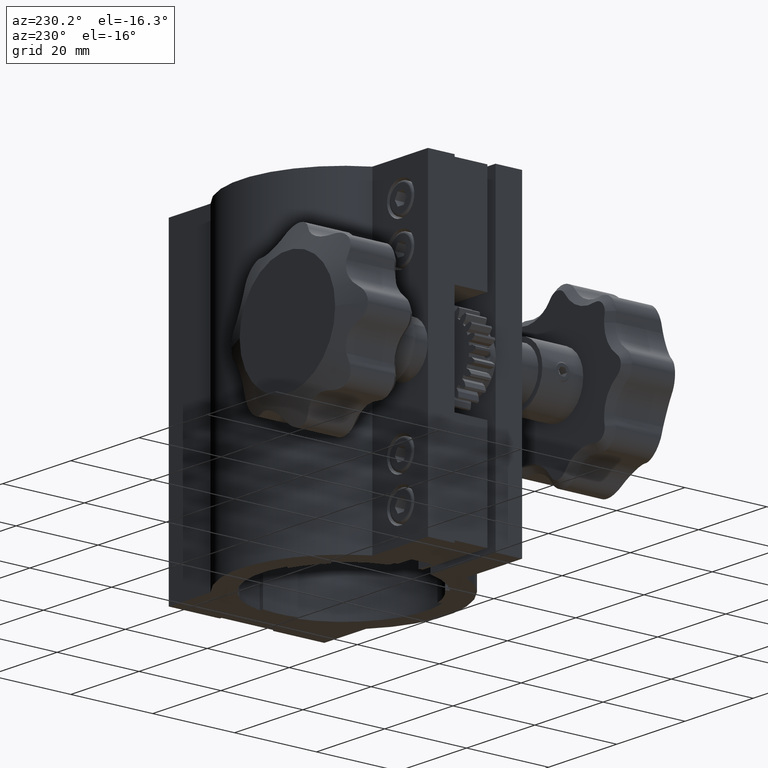
[diagram: clean part render]
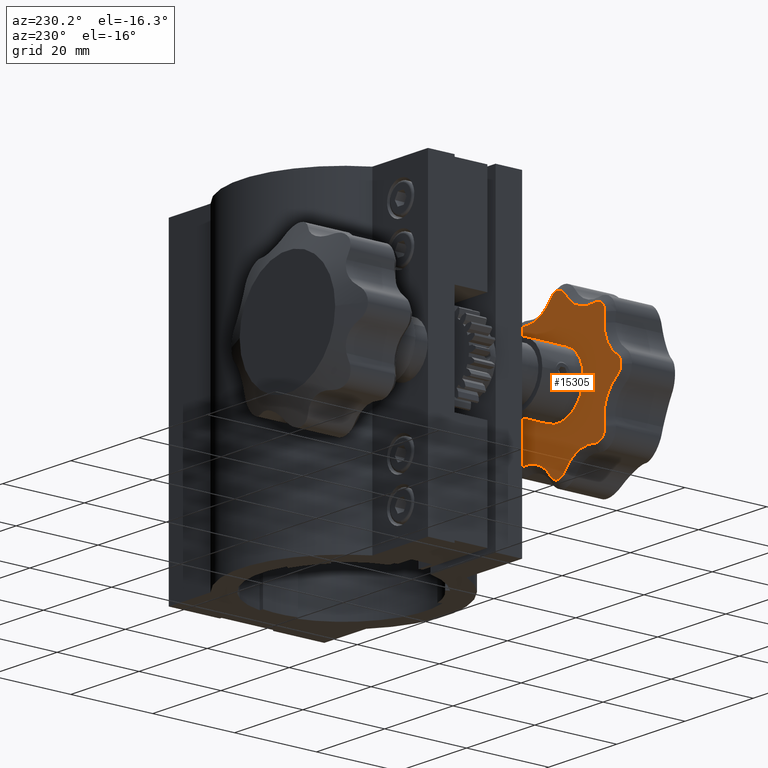
[diagram: same view with one face highlighted and labeled with its STEP entity id]
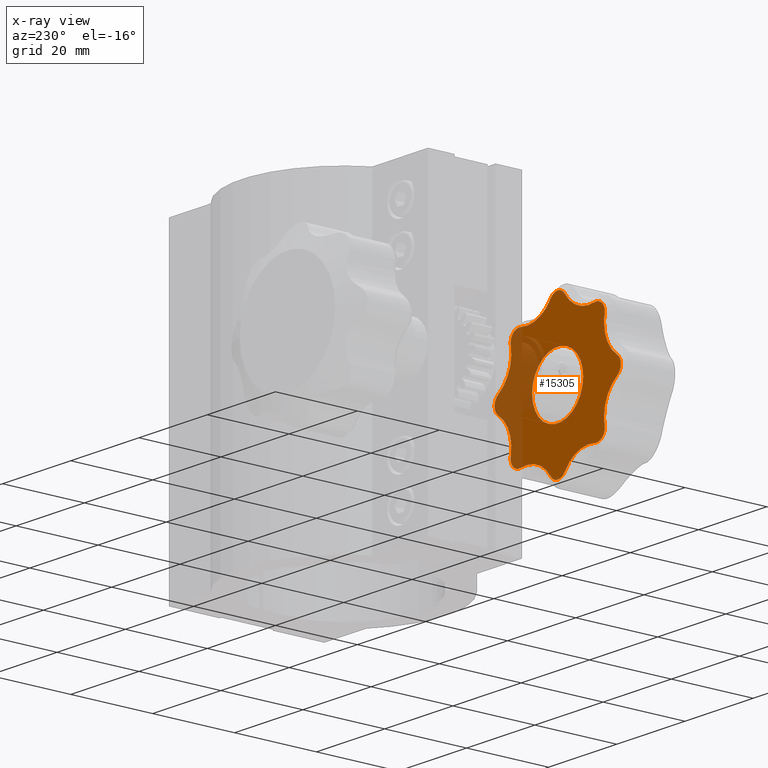
[diagram: x-ray of the same camera — body ghosted, the highlighted face saturated]
A machine part, auxiliary view. The second image highlights one B-rep face of the part: STEP entity #15305.
The next image is the same camera in x-ray: the body ghosted, the highlighted face saturated — about 26% of this face is hidden behind the body in this view.
In plain terms, the highlighted planar face has unit normal (0, -1, 0).
Its self-contained STEP definition (entity closure, byte-faithful):
#159 = CARTESIAN_POINT ( 'NONE',  ( -45.86468242595219600, -25.49999999999996800, 48.82287223682027400 ) ) ;
#227 = CIRCLE ( 'NONE', #6479, 8.500000000000021300 ) ;
#240 = CARTESIAN_POINT ( 'NONE',  ( -34.15952458363115300, -25.49999999999996100, 55.41716565348559000 ) ) ;
#241 = EDGE_CURVE ( 'NONE', #765, #13369, #7696, .T. ) ;
#399 = DIRECTION ( 'NONE',  ( 7.511012776517795100E-017, -1.000000000000000000, 5.679044632606782400E-017 ) ) ;
#533 = DIRECTION ( 'NONE',  ( -1.000000000000000000, 0.0000000000000000000, 0.0000000000000000000 ) ) ;
#659 = VERTEX_POINT ( 'NONE', #7663 ) ;
#723 = DIRECTION ( 'NONE',  ( -1.000000000000000000, 0.0000000000000000000, 0.0000000000000000000 ) ) ;
#765 = VERTEX_POINT ( 'NONE', #159 ) ;
#782 = DIRECTION ( 'NONE',  ( 7.511012776517795100E-017, -1.000000000000000000, 5.679044632606782400E-017 ) ) ;
#880 = ORIENTED_EDGE ( 'NONE', *, *, #15361, .T. ) ;
#1049 = VERTEX_POINT ( 'NONE', #12254 ) ;
#1062 = DIRECTION ( 'NONE',  ( -7.511012776517795100E-017, 1.000000000000000000, -5.679044632606782400E-017 ) ) ;
#1169 = VERTEX_POINT ( 'NONE', #11413 ) ;
#1269 = AXIS2_PLACEMENT_3D ( 'NONE', #6917, #15689, #8145 ) ;
#1455 = CARTESIAN_POINT ( 'NONE',  ( -22.94621229782707800, -25.49999999999985100, 60.09919841766998900 ) ) ;
#1561 = VERTEX_POINT ( 'NONE', #13044 ) ;
#1709 = EDGE_CURVE ( 'NONE', #14657, #6850, #11917, .T. ) ;
#1766 = CARTESIAN_POINT ( 'NONE',  ( -43.41370849898479600, -25.49999999999996400, 26.68629150101525800 ) ) ;
#1801 = CARTESIAN_POINT ( 'NONE',  ( -20.78629150101518500, -25.49999999999985400, 49.31370849898469500 ) ) ;
#1853 = AXIS2_PLACEMENT_3D ( 'NONE', #8570, #1062, #9861 ) ;
#1999 = EDGE_CURVE ( 'NONE', #10003, #1169, #2911, .T. ) ;
#2134 = VERTEX_POINT ( 'NONE', #5831 ) ;
#2528 = VERTEX_POINT ( 'NONE', #4639 ) ;
#2855 = CARTESIAN_POINT ( 'NONE',  ( -41.25378770217300000, -25.49999999999996100, 60.09919841767001700 ) ) ;
#2870 = CIRCLE ( 'NONE', #6866, 2.499638659272398900 ) ;
#2911 = CIRCLE ( 'NONE', #8185, 8.500000000000021300 ) ;
#2937 = VERTEX_POINT ( 'NONE', #12324 ) ;
#2989 = AXIS2_PLACEMENT_3D ( 'NONE', #5811, #14585, #7082 ) ;
#3002 = CARTESIAN_POINT ( 'NONE',  ( -16.10000000000001600, -25.49999999999985100, 37.99999999999995000 ) ) ;
#3031 = ORIENTED_EDGE ( 'NONE', *, *, #241, .T. ) ;
#3071 = DIRECTION ( 'NONE',  ( -1.000000000000000000, 0.0000000000000000000, -1.387979394175108700E-015 ) ) ;
#3112 = DIRECTION ( 'NONE',  ( -1.000000000000000000, 0.0000000000000000000, 0.0000000000000000000 ) ) ;
#3118 = ORIENTED_EDGE ( 'NONE', *, *, #4173, .T. ) ;
#3125 = CIRCLE ( 'NONE', #1853, 2.499999999999988500 ) ;
#3185 = CIRCLE ( 'NONE', #2989, 7.500000000000013300 ) ;
#3247 = ORIENTED_EDGE ( 'NONE', *, *, #1709, .T. ) ;
#3357 = CIRCLE ( 'NONE', #9616, 8.500000000000028400 ) ;
#3385 = DIRECTION ( 'NONE',  ( -7.511012776517795100E-017, 1.000000000000000000, -5.679044632606782400E-017 ) ) ;
#3414 = CARTESIAN_POINT ( 'NONE',  ( -45.69919841766999700, -25.49999999999996800, 28.84621229782701900 ) ) ;
#3485 = DIRECTION ( 'NONE',  ( 1.000000000000000000, 0.0000000000000000000, 0.0000000000000000000 ) ) ;
#3534 = CARTESIAN_POINT ( 'NONE',  ( -32.10000000000001600, -25.49999999999996400, 38.00000000000000700 ) ) ;
#3573 = ORIENTED_EDGE ( 'NONE', *, *, #14467, .T. ) ;
#3688 = VERTEX_POINT ( 'NONE', #7495 ) ;
#3746 = EDGE_CURVE ( 'NONE', #8925, #1049, #10380, .T. ) ;
#3782 = DIRECTION ( 'NONE',  ( 7.511012776517795100E-017, -1.000000000000000000, 5.679044632606782400E-017 ) ) ;
#3787 = CIRCLE ( 'NONE', #4148, 8.500000000000021300 ) ;
#3891 = VERTEX_POINT ( 'NONE', #14857 ) ;
#3895 = CARTESIAN_POINT ( 'NONE',  ( -50.59963865927246500, -25.49999999999996800, 38.00000000000000700 ) ) ;
#4021 = DIRECTION ( 'NONE',  ( 7.511012776518020700E-017, -1.000000000000000000, 5.679044632606782400E-017 ) ) ;
#4041 = EDGE_CURVE ( 'NONE', #7013, #14245, #11592, .T. ) ;
#4096 = DIRECTION ( 'NONE',  ( -1.000000000000000000, 0.0000000000000000000, 8.327876365050443500E-015 ) ) ;
#4111 = DIRECTION ( 'NONE',  ( -1.000000000000000000, 0.0000000000000000000, 0.0000000000000000000 ) ) ;
#4122 = AXIS2_PLACEMENT_3D ( 'NONE', #1801, #10579, #3112 ) ;
#4136 = DIRECTION ( 'NONE',  ( -7.511012776517795100E-017, 1.000000000000000000, -5.679044632606782400E-017 ) ) ;
#4148 = AXIS2_PLACEMENT_3D ( 'NONE', #11266, #3782, #12556 ) ;
#4173 = EDGE_CURVE ( 'NONE', #13685, #10775, #4745, .T. ) ;
#4241 = DIRECTION ( 'NONE',  ( -1.000000000000000000, 0.0000000000000000000, -2.775557561562904400E-015 ) ) ;
#4270 = CIRCLE ( 'NONE', #10595, 8.500000000000021300 ) ;
#4439 = FACE_BOUND ( 'NONE', #8434, .T. ) ;
#4639 = CARTESIAN_POINT ( 'NONE',  ( -45.91334715825720300, -25.49999999999996400, 26.68629150101525800 ) ) ;
#4745 = CIRCLE ( 'NONE', #12200, 8.500000000000021300 ) ;
#4783 = DIRECTION ( 'NONE',  ( -7.511012776517795100E-017, 1.000000000000000000, -5.679044632606782400E-017 ) ) ;
#4866 = DIRECTION ( 'NONE',  ( 7.511012776517795100E-017, -1.000000000000000000, 5.679044632606782400E-017 ) ) ;
#4879 = AXIS2_PLACEMENT_3D ( 'NONE', #1766, #10542, #3071 ) ;
#4980 = CARTESIAN_POINT ( 'NONE',  ( -54.19919841767002600, -25.49999999999996800, 28.84621229782702300 ) ) ;
#5318 = DIRECTION ( 'NONE',  ( -7.511012776517795100E-017, 1.000000000000000000, -5.679044632606782400E-017 ) ) ;
#5328 = DIRECTION ( 'NONE',  ( -7.511012776517795100E-017, 1.000000000000000000, -5.679044632606782400E-017 ) ) ;
#5341 = EDGE_CURVE ( 'NONE', #13369, #10727, #14297, .T. ) ;
#5420 = CARTESIAN_POINT ( 'NONE',  ( -42.92287223682031100, -25.49999999999996400, 24.23531757404795400 ) ) ;
#5438 = EDGE_CURVE ( 'NONE', #7518, #14657, #8917, .T. ) ;
#5451 = ORIENTED_EDGE ( 'NONE', *, *, #5829, .T. ) ;
#5811 = CARTESIAN_POINT ( 'NONE',  ( -32.10000000000001600, -25.49999999999996400, 38.00000000000000700 ) ) ;
#5829 = EDGE_CURVE ( 'NONE', #659, #765, #13019, .T. ) ;
#5831 = CARTESIAN_POINT ( 'NONE',  ( -14.68283434651403100, -25.49999999999985100, 40.05952458363074000 ) ) ;
#5919 = ORIENTED_EDGE ( 'NONE', *, *, #15869, .T. ) ;
#5992 = DIRECTION ( 'NONE',  ( 7.511012776517795100E-017, -1.000000000000000000, 5.679044632606782400E-017 ) ) ;
#6040 = AXIS2_PLACEMENT_3D ( 'NONE', #11513, #4021, #12810 ) ;
#6198 = CARTESIAN_POINT ( 'NONE',  ( -14.68283434651009000, -25.49999999999985100, 35.94047541637188200 ) ) ;
#6273 = DIRECTION ( 'NONE',  ( -1.000000000000000000, 0.0000000000000000000, 4.081702296416006600E-016 ) ) ;
#6294 = AXIS2_PLACEMENT_3D ( 'NONE', #15607, #8075, #533 ) ;
#6479 = AXIS2_PLACEMENT_3D ( 'NONE', #7939, #399, #9207 ) ;
#6655 = CARTESIAN_POINT ( 'NONE',  ( -21.24050785647691000, -25.49999999999985400, 51.77209974173491200 ) ) ;
#6673 = CIRCLE ( 'NONE', #7362, 2.499999999999984900 ) ;
#6792 = ORIENTED_EDGE ( 'NONE', *, *, #10551, .T. ) ;
#6825 = CIRCLE ( 'NONE', #4122, 2.499999999999984900 ) ;
#6850 = VERTEX_POINT ( 'NONE', #6655 ) ;
#6866 = AXIS2_PLACEMENT_3D ( 'NONE', #12861, #5328, #14118 ) ;
#6893 = EDGE_LOOP ( 'NONE', ( #7255, #8335, #9001, #11248, #7332, #880, #3118, #11799, #10129, #12564, #3573, #5451, #3031, #10685, #6792, #11141, #3247, #8171, #5919, #14294, #13999 ) ) ;
#6915 = DIRECTION ( 'NONE',  ( 7.511012776517795100E-017, -1.000000000000000000, 5.679044632606782400E-017 ) ) ;
#6917 = CARTESIAN_POINT ( 'NONE',  ( -48.10000000000007200, -25.49999999999996800, 38.00000000000000700 ) ) ;
#7013 = VERTEX_POINT ( 'NONE', #13145 ) ;
#7082 = DIRECTION ( 'NONE',  ( 1.000000000000000000, 0.0000000000000000000, 0.0000000000000000000 ) ) ;
#7129 = EDGE_CURVE ( 'NONE', #1169, #3891, #6673, .T. ) ;
#7255 = ORIENTED_EDGE ( 'NONE', *, *, #7129, .T. ) ;
#7332 = ORIENTED_EDGE ( 'NONE', *, *, #11191, .T. ) ;
#7362 = AXIS2_PLACEMENT_3D ( 'NONE', #10854, #3385, #12112 ) ;
#7495 = CARTESIAN_POINT ( 'NONE',  ( -49.48602663484135200, -25.49999999999996800, 40.08017393369875200 ) ) ;
#7518 = VERTEX_POINT ( 'NONE', #240 ) ;
#7663 = CARTESIAN_POINT ( 'NONE',  ( -45.69919841767015400, -25.49999999999996800, 47.15378770217284900 ) ) ;
#7696 = CIRCLE ( 'NONE', #8885, 2.499638659272482400 ) ;
#7705 = AXIS2_PLACEMENT_3D ( 'NONE', #11615, #4136, #12909 ) ;
#7721 = DIRECTION ( 'NONE',  ( -7.511012776517795100E-017, 1.000000000000000000, -5.679044632606782400E-017 ) ) ;
#7838 = CARTESIAN_POINT ( 'NONE',  ( -45.91334715825725300, -25.49999999999996400, 49.31370849898475200 ) ) ;
#7939 = CARTESIAN_POINT ( 'NONE',  ( -10.00080158233009100, -25.49999999999985100, 47.15378770217293400 ) ) ;
#8075 = DIRECTION ( 'NONE',  ( 7.511012776517795100E-017, -1.000000000000000000, 5.679044632606782400E-017 ) ) ;
#8144 = CARTESIAN_POINT ( 'NONE',  ( -42.92287223682029000, -25.49999999999996400, 51.76468242595211700 ) ) ;
#8145 = DIRECTION ( 'NONE',  ( -1.000000000000000000, 0.0000000000000000000, 1.110383515340096300E-014 ) ) ;
#8171 = ORIENTED_EDGE ( 'NONE', *, *, #14976, .T. ) ;
#8185 = AXIS2_PLACEMENT_3D ( 'NONE', #15849, #12126, #11957 ) ;
#8208 = AXIS2_PLACEMENT_3D ( 'NONE', #14421, #6915, #15687 ) ;
#8335 = ORIENTED_EDGE ( 'NONE', *, *, #16301, .T. ) ;
#8370 = CIRCLE ( 'NONE', #14522, 2.499999999999988500 ) ;
#8434 = EDGE_LOOP ( 'NONE', ( #12286, #9194 ) ) ;
#8570 = CARTESIAN_POINT ( 'NONE',  ( -32.10000000000001600, -25.49999999999996800, 22.00000000000002100 ) ) ;
#8828 = CIRCLE ( 'NONE', #4879, 2.499638659272419800 ) ;
#8885 = AXIS2_PLACEMENT_3D ( 'NONE', #13193, #7721, #4096 ) ;
#8904 = PLANE ( 'NONE',  #6040 ) ;
#8917 = CIRCLE ( 'NONE', #10522, 2.499999999999988500 ) ;
#8925 = VERTEX_POINT ( 'NONE', #13488 ) ;
#9001 = ORIENTED_EDGE ( 'NONE', *, *, #9484, .T. ) ;
#9194 = ORIENTED_EDGE ( 'NONE', *, *, #10751, .F. ) ;
#9207 = DIRECTION ( 'NONE',  ( -1.000000000000000000, 0.0000000000000000000, 0.0000000000000000000 ) ) ;
#9484 = EDGE_CURVE ( 'NONE', #2937, #14020, #3125, .T. ) ;
#9553 = CARTESIAN_POINT ( 'NONE',  ( -34.15952458363080500, -25.49999999999996800, 20.58283434651397700 ) ) ;
#9616 = AXIS2_PLACEMENT_3D ( 'NONE', #12378, #4866, #13647 ) ;
#9861 = DIRECTION ( 'NONE',  ( -1.000000000000000000, 0.0000000000000000000, 0.0000000000000000000 ) ) ;
#10003 = VERTEX_POINT ( 'NONE', #6198 ) ;
#10033 = AXIS2_PLACEMENT_3D ( 'NONE', #12285, #4783, #13556 ) ;
#10129 = ORIENTED_EDGE ( 'NONE', *, *, #4041, .T. ) ;
#10380 = CIRCLE ( 'NONE', #11779, 7.500000000000013300 ) ;
#10522 = AXIS2_PLACEMENT_3D ( 'NONE', #12851, #5318, #14110 ) ;
#10542 = DIRECTION ( 'NONE',  ( -7.511012776517795100E-017, 1.000000000000000000, -5.679044632606782400E-017 ) ) ;
#10551 = EDGE_CURVE ( 'NONE', #10727, #7518, #13996, .T. ) ;
#10579 = DIRECTION ( 'NONE',  ( -7.511012776517795100E-017, 1.000000000000000000, -5.679044632606782400E-017 ) ) ;
#10595 = AXIS2_PLACEMENT_3D ( 'NONE', #4980, #13757, #6273 ) ;
#10646 = CIRCLE ( 'NONE', #8208, 8.500000000000007100 ) ;
#10685 = ORIENTED_EDGE ( 'NONE', *, *, #5341, .T. ) ;
#10727 = VERTEX_POINT ( 'NONE', #8144 ) ;
#10751 = EDGE_CURVE ( 'NONE', #1049, #8925, #3185, .T. ) ;
#10775 = VERTEX_POINT ( 'NONE', #3414 ) ;
#10854 = CARTESIAN_POINT ( 'NONE',  ( -20.78629150101519900, -25.49999999999985400, 26.68629150101523000 ) ) ;
#10916 = AXIS2_PLACEMENT_3D ( 'NONE', #2855, #11594, #4111 ) ;
#11096 = FACE_OUTER_BOUND ( 'NONE', #6893, .T. ) ;
#11141 = ORIENTED_EDGE ( 'NONE', *, *, #5438, .T. ) ;
#11191 = EDGE_CURVE ( 'NONE', #15882, #2528, #8828, .T. ) ;
#11248 = ORIENTED_EDGE ( 'NONE', *, *, #11431, .T. ) ;
#11266 = CARTESIAN_POINT ( 'NONE',  ( -22.94621229782704900, -25.49999999999985800, 15.90080158232998300 ) ) ;
#11413 = CARTESIAN_POINT ( 'NONE',  ( -18.32790025826534800, -25.49999999999985100, 27.14050785647892300 ) ) ;
#11431 = EDGE_CURVE ( 'NONE', #14020, #15882, #3357, .T. ) ;
#11513 = CARTESIAN_POINT ( 'NONE',  ( -32.09999999999995900, -25.49999999999996400, 30.50000000000000000 ) ) ;
#11592 = CIRCLE ( 'NONE', #1269, 2.499638659272398900 ) ;
#11594 = DIRECTION ( 'NONE',  ( 7.511012776517795100E-017, -1.000000000000000000, 5.679044632606782400E-017 ) ) ;
#11615 = CARTESIAN_POINT ( 'NONE',  ( -43.41370849898479600, -25.49999999999996400, 26.68629150101525800 ) ) ;
#11728 = DIRECTION ( 'NONE',  ( -7.511012776517795100E-017, 1.000000000000000000, -5.679044632606782400E-017 ) ) ;
#11779 = AXIS2_PLACEMENT_3D ( 'NONE', #3534, #15832, #3485 ) ;
#11799 = ORIENTED_EDGE ( 'NONE', *, *, #14672, .T. ) ;
#11917 = CIRCLE ( 'NONE', #12497, 8.500000000000014200 ) ;
#11957 = DIRECTION ( 'NONE',  ( -1.000000000000000000, 0.0000000000000000000, 4.081702296416006600E-016 ) ) ;
#12112 = DIRECTION ( 'NONE',  ( -1.000000000000000000, 0.0000000000000000000, 0.0000000000000000000 ) ) ;
#12126 = DIRECTION ( 'NONE',  ( 7.511012776517795100E-017, -1.000000000000000000, 5.679044632606782400E-017 ) ) ;
#12200 = AXIS2_PLACEMENT_3D ( 'NONE', #13478, #5992, #14743 ) ;
#12254 = CARTESIAN_POINT ( 'NONE',  ( -39.60000000000001600, -25.49999999999996400, 38.00000000000000700 ) ) ;
#12285 = CARTESIAN_POINT ( 'NONE',  ( -43.41370849898478200, -25.49999999999996400, 49.31370849898475200 ) ) ;
#12286 = ORIENTED_EDGE ( 'NONE', *, *, #3746, .F. ) ;
#12324 = CARTESIAN_POINT ( 'NONE',  ( -30.04047541636913000, -25.49999999999996800, 20.58283434651417200 ) ) ;
#12378 = CARTESIAN_POINT ( 'NONE',  ( -41.25378770217302800, -25.49999999999996800, 15.90080158233003800 ) ) ;
#12497 = AXIS2_PLACEMENT_3D ( 'NONE', #1455, #782, #723 ) ;
#12556 = DIRECTION ( 'NONE',  ( -1.000000000000000000, 0.0000000000000000000, 4.081702296416006600E-016 ) ) ;
#12564 = ORIENTED_EDGE ( 'NONE', *, *, #15317, .T. ) ;
#12810 = DIRECTION ( 'NONE',  ( -1.000000000000000000, -7.511012776518019400E-017, 2.498001805406599300E-016 ) ) ;
#12851 = CARTESIAN_POINT ( 'NONE',  ( -32.10000000000004400, -25.49999999999996100, 54.00000000000005000 ) ) ;
#12861 = CARTESIAN_POINT ( 'NONE',  ( -48.10000000000007200, -25.49999999999996800, 38.00000000000000700 ) ) ;
#12875 = CIRCLE ( 'NONE', #7705, 2.499638659272419800 ) ;
#12909 = DIRECTION ( 'NONE',  ( -1.000000000000000000, 0.0000000000000000000, 0.0000000000000000000 ) ) ;
#13019 = CIRCLE ( 'NONE', #6294, 8.500000000000007100 ) ;
#13044 = CARTESIAN_POINT ( 'NONE',  ( -18.32790025826455600, -25.49999999999985100, 48.85949214352522300 ) ) ;
#13145 = CARTESIAN_POINT ( 'NONE',  ( -49.48602663484132300, -25.49999999999996800, 35.91982606630120500 ) ) ;
#13193 = CARTESIAN_POINT ( 'NONE',  ( -43.41370849898478200, -25.49999999999996400, 49.31370849898475200 ) ) ;
#13369 = VERTEX_POINT ( 'NONE', #7838 ) ;
#13478 = CARTESIAN_POINT ( 'NONE',  ( -54.19919841767002600, -25.49999999999996800, 28.84621229782702300 ) ) ;
#13479 = CARTESIAN_POINT ( 'NONE',  ( -45.86468242595212500, -25.49999999999996800, 27.17712776317973700 ) ) ;
#13488 = CARTESIAN_POINT ( 'NONE',  ( -24.60000000000000500, -25.49999999999996400, 38.00000000000000700 ) ) ;
#13556 = DIRECTION ( 'NONE',  ( -1.000000000000000000, 0.0000000000000000000, 0.0000000000000000000 ) ) ;
#13647 = DIRECTION ( 'NONE',  ( -1.000000000000000000, 0.0000000000000000000, 4.081702296416003200E-016 ) ) ;
#13685 = VERTEX_POINT ( 'NONE', #13479 ) ;
#13757 = DIRECTION ( 'NONE',  ( 7.511012776517795100E-017, -1.000000000000000000, 5.679044632606782400E-017 ) ) ;
#13996 = CIRCLE ( 'NONE', #10916, 8.500000000000014200 ) ;
#13999 = ORIENTED_EDGE ( 'NONE', *, *, #1999, .T. ) ;
#14020 = VERTEX_POINT ( 'NONE', #9553 ) ;
#14110 = DIRECTION ( 'NONE',  ( -1.000000000000000000, 0.0000000000000000000, 0.0000000000000000000 ) ) ;
#14118 = DIRECTION ( 'NONE',  ( -1.000000000000000000, 0.0000000000000000000, 0.0000000000000000000 ) ) ;
#14245 = VERTEX_POINT ( 'NONE', #3895 ) ;
#14294 = ORIENTED_EDGE ( 'NONE', *, *, #14928, .T. ) ;
#14297 = CIRCLE ( 'NONE', #10033, 2.499638659272482400 ) ;
#14421 = CARTESIAN_POINT ( 'NONE',  ( -54.19919841767016800, -25.49999999999996800, 47.15378770217284900 ) ) ;
#14467 = EDGE_CURVE ( 'NONE', #3688, #659, #10646, .T. ) ;
#14522 = AXIS2_PLACEMENT_3D ( 'NONE', #3002, #11728, #4241 ) ;
#14585 = DIRECTION ( 'NONE',  ( -7.511012776517795100E-017, 1.000000000000000000, -5.679044632606782400E-017 ) ) ;
#14657 = VERTEX_POINT ( 'NONE', #16257 ) ;
#14672 = EDGE_CURVE ( 'NONE', #10775, #7013, #4270, .T. ) ;
#14743 = DIRECTION ( 'NONE',  ( -1.000000000000000000, 0.0000000000000000000, 4.081702296416006600E-016 ) ) ;
#14857 = CARTESIAN_POINT ( 'NONE',  ( -21.24050785647721500, -25.49999999999985400, 24.22790025826498800 ) ) ;
#14928 = EDGE_CURVE ( 'NONE', #2134, #10003, #8370, .T. ) ;
#14976 = EDGE_CURVE ( 'NONE', #6850, #1561, #6825, .T. ) ;
#15305 = ADVANCED_FACE ( 'NONE', ( #11096, #4439 ), #8904, .F. ) ;
#15317 = EDGE_CURVE ( 'NONE', #14245, #3688, #2870, .T. ) ;
#15361 = EDGE_CURVE ( 'NONE', #2528, #13685, #12875, .T. ) ;
#15607 = CARTESIAN_POINT ( 'NONE',  ( -54.19919841767016800, -25.49999999999996800, 47.15378770217284900 ) ) ;
#15687 = DIRECTION ( 'NONE',  ( -1.000000000000000000, 0.0000000000000000000, 0.0000000000000000000 ) ) ;
#15689 = DIRECTION ( 'NONE',  ( -7.511012776517795100E-017, 1.000000000000000000, -5.679044632606782400E-017 ) ) ;
#15832 = DIRECTION ( 'NONE',  ( -7.511012776517795100E-017, 1.000000000000000000, -5.679044632606782400E-017 ) ) ;
#15849 = CARTESIAN_POINT ( 'NONE',  ( -10.00080158233000700, -25.49999999999985100, 28.84621229782716200 ) ) ;
#15869 = EDGE_CURVE ( 'NONE', #1561, #2134, #227, .T. ) ;
#15882 = VERTEX_POINT ( 'NONE', #5420 ) ;
#16257 = CARTESIAN_POINT ( 'NONE',  ( -30.04047541636899200, -25.49999999999996100, 55.41716565348567500 ) ) ;
#16301 = EDGE_CURVE ( 'NONE', #3891, #2937, #3787, .T. ) ;